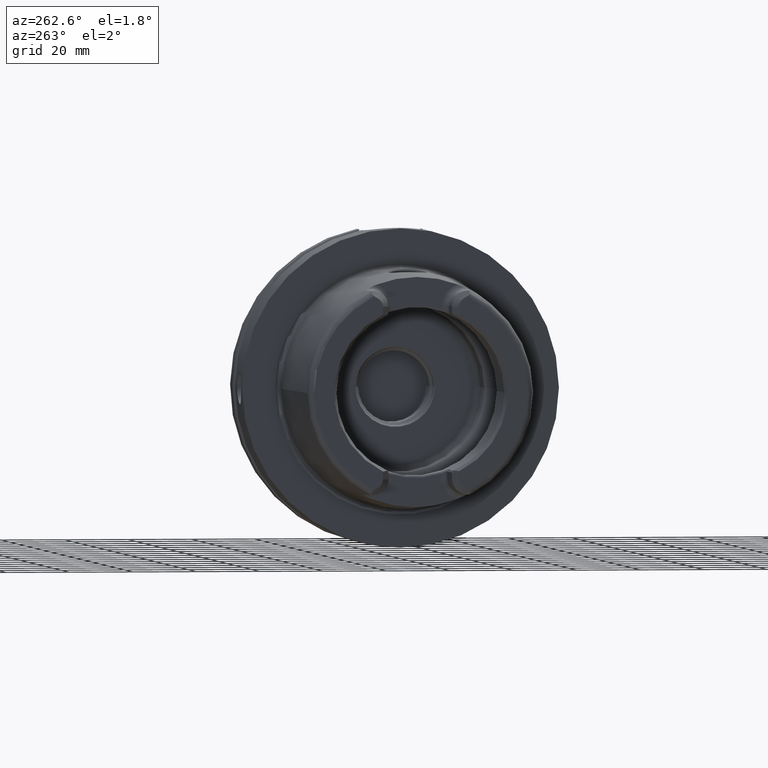
[diagram: clean part render]
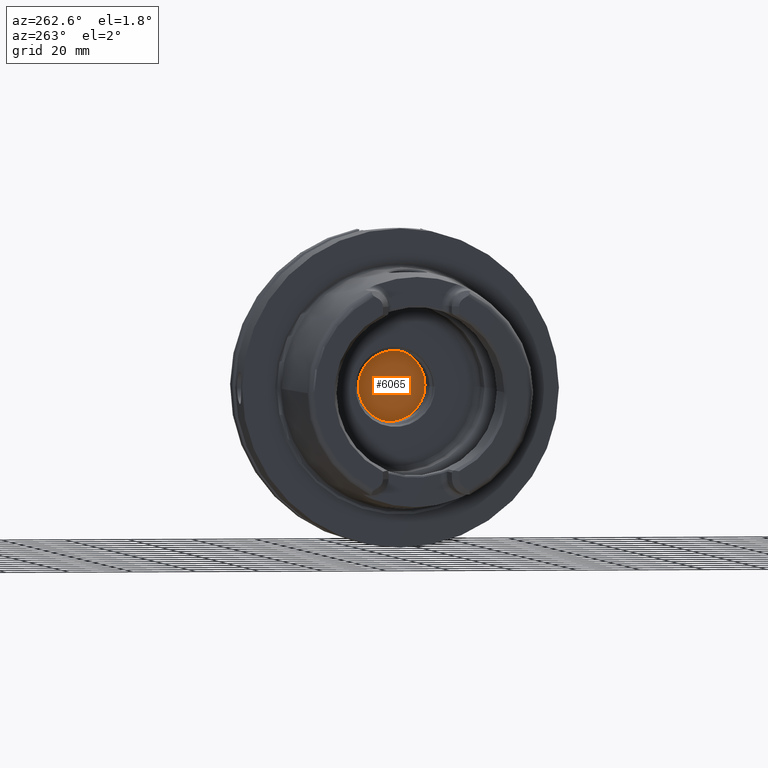
[diagram: same view with one face highlighted and labeled with its STEP entity id]
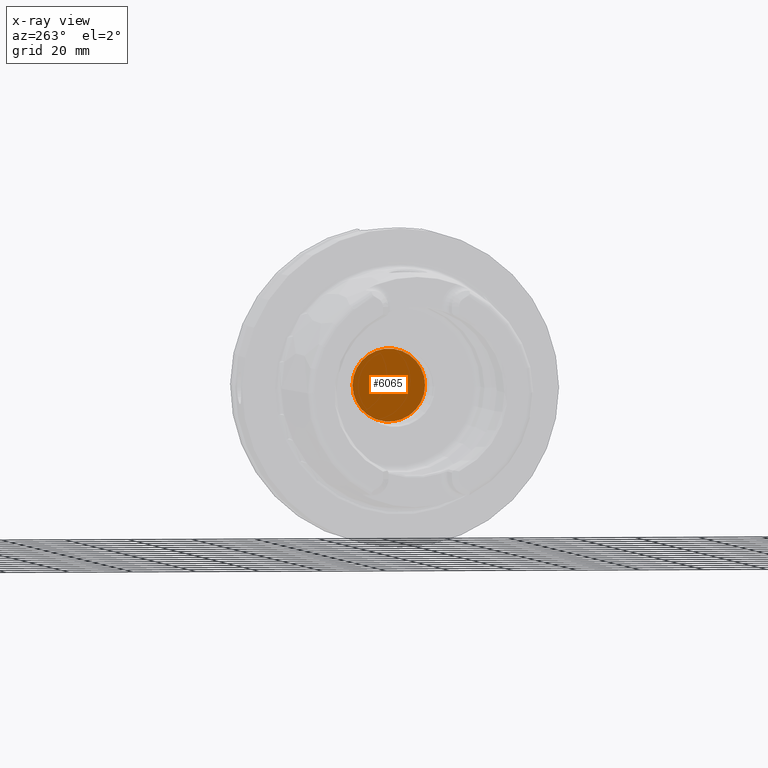
[diagram: x-ray of the same camera — body ghosted, the highlighted face saturated]
A machine part, auxiliary view. The second image highlights one B-rep face of the part: STEP entity #6065.
The next image is the same camera in x-ray: the body ghosted, the highlighted face saturated — about 0% of this face is hidden behind the body in this view.
In plain terms, the highlighted planar face has unit normal (1, 0, 0).
Its self-contained STEP definition (entity closure, byte-faithful):
#2428=CARTESIAN_POINT('',(2.85E1,0.E0,0.E0));
#2429=DIRECTION('',(-1.E0,0.E0,0.E0));
#2430=DIRECTION('',(0.E0,-1.E0,0.E0));
#2431=AXIS2_PLACEMENT_3D('',#2428,#2429,#2430);
#2433=CARTESIAN_POINT('',(2.85E1,0.E0,0.E0));
#2434=DIRECTION('',(1.E0,0.E0,0.E0));
#2435=DIRECTION('',(0.E0,-1.E0,0.E0));
#2436=AXIS2_PLACEMENT_3D('',#2433,#2434,#2435);
#3099=CARTESIAN_POINT('',(2.85E1,-1.145E1,0.E0));
#3100=VERTEX_POINT('',#3099);
#3111=CARTESIAN_POINT('',(2.85E1,1.145E1,0.E0));
#3112=VERTEX_POINT('',#3111);
#6056=CARTESIAN_POINT('',(2.85E1,0.E0,0.E0));
#6057=DIRECTION('',(1.E0,0.E0,0.E0));
#6058=DIRECTION('',(0.E0,-1.E0,0.E0));
#6059=AXIS2_PLACEMENT_3D('',#6056,#6057,#6058);
#6060=PLANE('',#6059);
#6061=ORIENTED_EDGE('',*,*,#6049,.F.);
#6062=ORIENTED_EDGE('',*,*,#6038,.T.);
#6063=EDGE_LOOP('',(#6061,#6062));
#6064=FACE_OUTER_BOUND('',#6063,.F.);
#6065=ADVANCED_FACE('',(#6064),#6060,.F.);
#2432=CIRCLE('',#2431,1.145E1);
#2437=CIRCLE('',#2436,1.145E1);
#6038=EDGE_CURVE('',#3100,#3112,#2437,.T.);
#6049=EDGE_CURVE('',#3100,#3112,#2432,.T.);